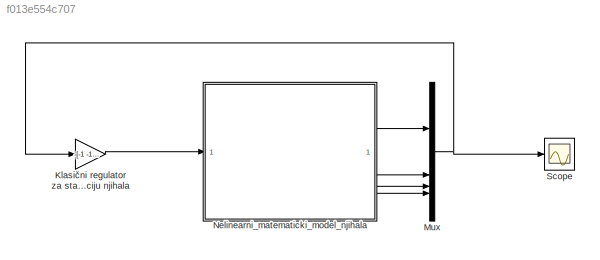
MODEL slx_f013e554c707
KIND model
CONFIG AbsTol = auto
CONFIG EnableMultiTasking = off
CONFIG FixedStep = 0.001
CONFIG MaxStep = 0.01
CONFIG MinStep = auto
CONFIG RelTol = 1e-3
CONFIG SampleTimeConstraint = Unconstrained
CONFIG SolverName = FixedStepAuto
CONFIG StartTime = 0.0
CONFIG StopTime = 15
BLOCK [Gain] Klasični regulator za stabilizaciju njihala
  Gain = -[-1 -1 16 2]
  Multiplication = Matrix(K*u)
BLOCK [Mux] Mux
  DisplayOption = bar
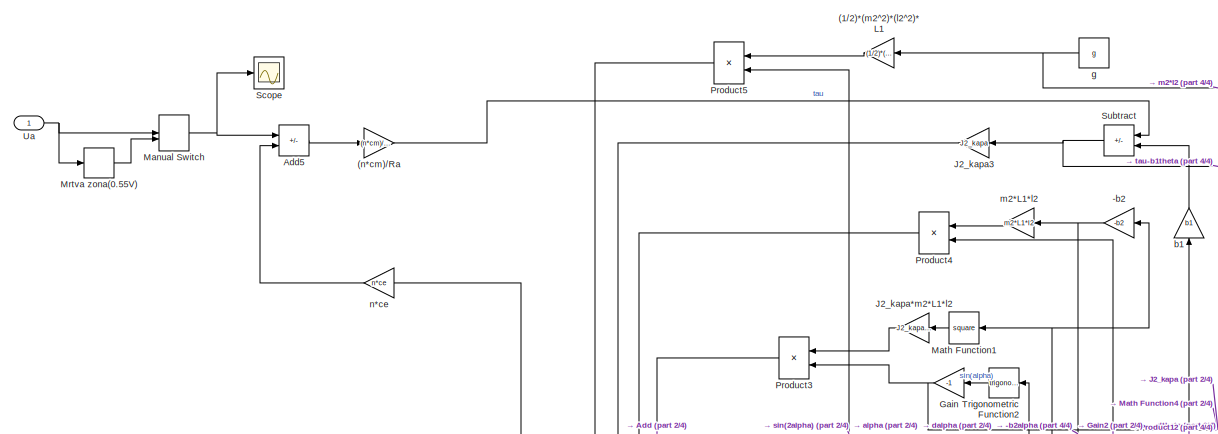
[diagram: Nelinearni_matematicki_model_njihala - part 1/4, top left region]
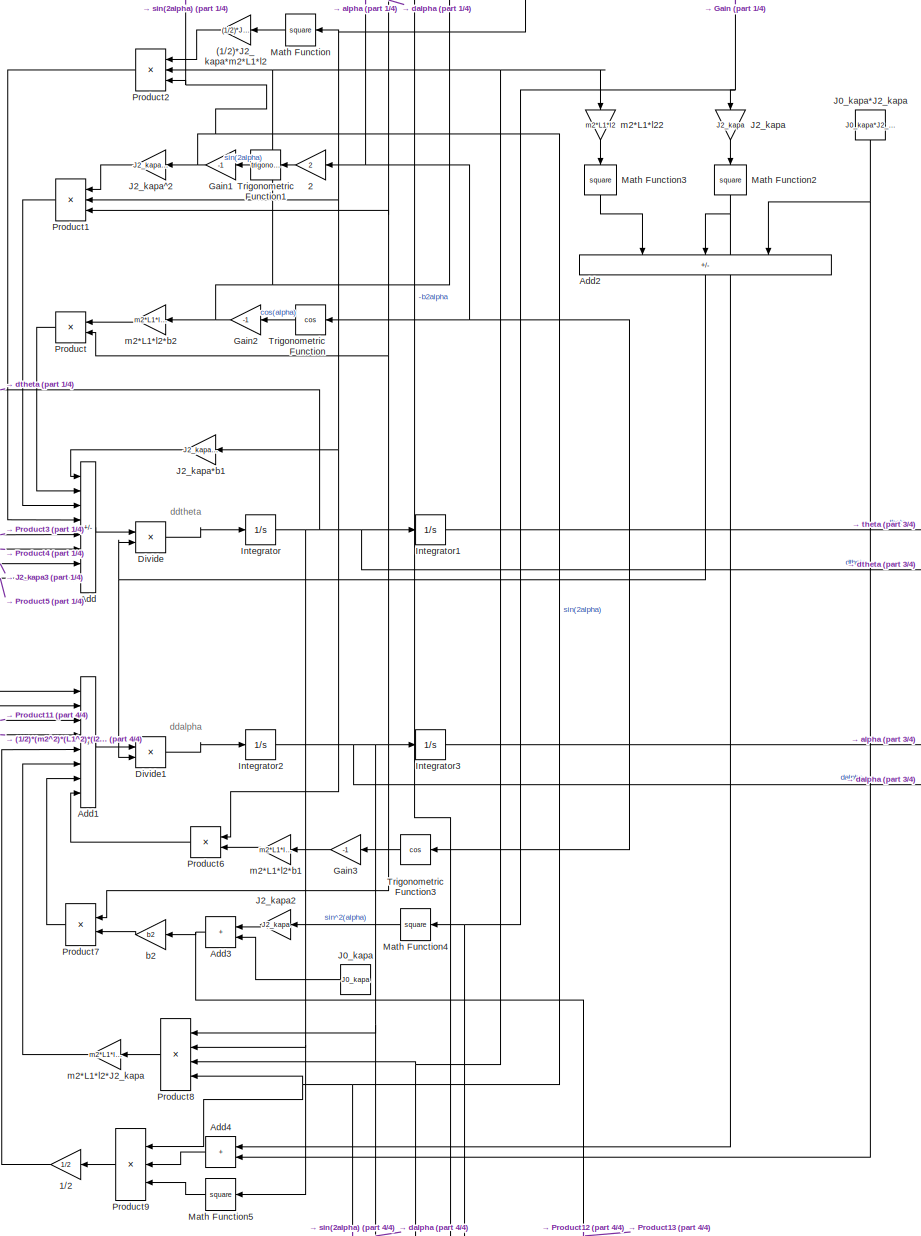
[diagram: Nelinearni_matematicki_model_njihala - part 2/4, central region]
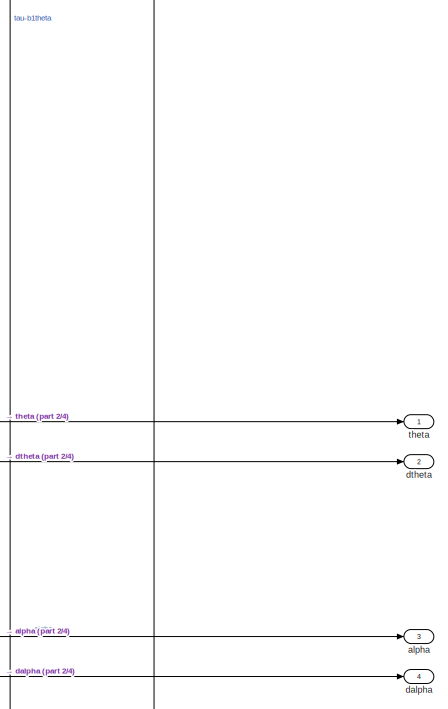
[diagram: Nelinearni_matematicki_model_njihala - part 3/4, middle right region]
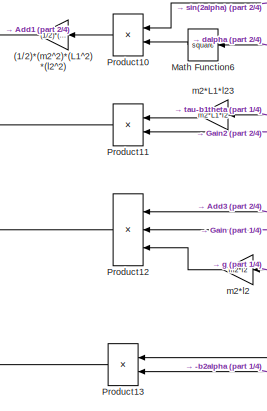
[diagram: Nelinearni_matematicki_model_njihala - part 4/4, bottom center region]
BLOCK [SubSystem] Nelinearni_matematicki_model_njihala
BLOCK [Gain] Nelinearni_matematicki_model_njihala/(1//2)*(m2^2)*(L1^2)*(l2^2)
  Gain = (1/2)*(m2^2)*(L1^2)*(l2^2)
  NameLocation = top
BLOCK [Gain] Nelinearni_matematicki_model_njihala/(1//2)*(m2^2)*(l2^2)*L1
  Gain = (1/2)*(m2^2)*(l2^2)*L1
  NameLocation = top
BLOCK [Gain] Nelinearni_matematicki_model_njihala/(1//2)*J2_kapa*m2*L1*l2
  Gain = (1/2)*J2_kapa*m2*L1*l2
  NameLocation = top
BLOCK [Gain] Nelinearni_matematicki_model_njihala/(n*cm)//Ra
  Gain = (n*cm)/Ra
BLOCK [Gain] Nelinearni_matematicki_model_njihala/-b2
  Gain = -b2
  NameLocation = top
BLOCK [Gain] Nelinearni_matematicki_model_njihala/1//2
  Gain = 1/2
  NameLocation = top
BLOCK [Gain] Nelinearni_matematicki_model_njihala/2
  Gain = 2
  NameLocation = top
BLOCK [Sum] Nelinearni_matematicki_model_njihala/Add
  IconShape = rectangular
  Inputs = -+--+-+-
BLOCK [Sum] Nelinearni_matematicki_model_njihala/Add1
  IconShape = rectangular
  Inputs = -+---+-+
BLOCK [Sum] Nelinearni_matematicki_model_njihala/Add2
  IconShape = rectangular
  Inputs = -++
  NameLocation = left
BLOCK [Sum] Nelinearni_matematicki_model_njihala/Add3
  IconShape = rectangular
  NameLocation = top
BLOCK [Sum] Nelinearni_matematicki_model_njihala/Add4
  IconShape = rectangular
  NameLocation = top
BLOCK [Sum] Nelinearni_matematicki_model_njihala/Add5
  IconShape = rectangular
  Inputs = +-
BLOCK [Product] Nelinearni_matematicki_model_njihala/Divide
  Inputs = */
BLOCK [Product] Nelinearni_matematicki_model_njihala/Divide1
  Inputs = */
BLOCK [Gain] Nelinearni_matematicki_model_njihala/Gain
  Gain = -1
  NameLocation = top
BLOCK [Gain] Nelinearni_matematicki_model_njihala/Gain1
  Gain = -1
  NameLocation = top
BLOCK [Gain] Nelinearni_matematicki_model_njihala/Gain2
  Gain = -1
  NameLocation = top
BLOCK [Gain] Nelinearni_matematicki_model_njihala/Gain3
  Gain = -1
  NameLocation = top
BLOCK [Integrator] Nelinearni_matematicki_model_njihala/Integrator
BLOCK [Integrator] Nelinearni_matematicki_model_njihala/Integrator1
BLOCK [Integrator] Nelinearni_matematicki_model_njihala/Integrator2
BLOCK [Integrator] Nelinearni_matematicki_model_njihala/Integrator3
  InitialCondition = pi/16
BLOCK [Constant] Nelinearni_matematicki_model_njihala/J0_kapa
  NameLocation = top
  Value = J0_kapa
BLOCK [Constant] Nelinearni_matematicki_model_njihala/J0_kapa*J2_kapa
  NameLocation = left
  Value = J0_kapa*J2_kapa
BLOCK [Gain] Nelinearni_matematicki_model_njihala/J2_kapa
  Gain = J2_kapa
  NameLocation = left
BLOCK [Gain] Nelinearni_matematicki_model_njihala/J2_kapa*b1
  Gain = J2_kapa*b1
  NameLocation = top
BLOCK [Gain] Nelinearni_matematicki_model_njihala/J2_kapa*m2*L1*l2
  Gain = J2_kapa*m2*L1*l2
  NameLocation = top
BLOCK [Gain] Nelinearni_matematicki_model_njihala/J2_kapa2
  Gain = J2_kapa
  NameLocation = top
BLOCK [Gain] Nelinearni_matematicki_model_njihala/J2_kapa3
  Gain = J2_kapa
  NameLocation = top
BLOCK [Gain] Nelinearni_matematicki_model_njihala/J2_kapa^2
  Gain = J2_kapa^2
  NameLocation = top
BLOCK [ManualSwitch] Nelinearni_matematicki_model_njihala/Manual Switch
BLOCK [Math] Nelinearni_matematicki_model_njihala/Math Function
  NameLocation = top
  Operator = square
BLOCK [Math] Nelinearni_matematicki_model_njihala/Math Function1
  NameLocation = top
  Operator = square
BLOCK [Math] Nelinearni_matematicki_model_njihala/Math Function2
  NameLocation = left
  Operator = square
BLOCK [Math] Nelinearni_matematicki_model_njihala/Math Function3
  NameLocation = left
  Operator = square
BLOCK [Math] Nelinearni_matematicki_model_njihala/Math Function4
  NameLocation = top
  Operator = square
BLOCK [Math] Nelinearni_matematicki_model_njihala/Math Function5
  NameLocation = top
  Operator = square
BLOCK [Math] Nelinearni_matematicki_model_njihala/Math Function6
  NameLocation = top
  Operator = square
BLOCK [DeadZone] Nelinearni_matematicki_model_njihala/Mrtva zona(0.55V)
  LowerValue = -0.55
  UpperValue = 0.55
BLOCK [Product] Nelinearni_matematicki_model_njihala/Product
  NameLocation = top
BLOCK [Product] Nelinearni_matematicki_model_njihala/Product1
  Inputs = 3
  NameLocation = top
BLOCK [Product] Nelinearni_matematicki_model_njihala/Product10
  NameLocation = top
BLOCK [Product] Nelinearni_matematicki_model_njihala/Product11
  NameLocation = top
BLOCK [Product] Nelinearni_matematicki_model_njihala/Product12
  Inputs = 3
  NameLocation = top
BLOCK [Product] Nelinearni_matematicki_model_njihala/Product13
  NameLocation = top
BLOCK [Product] Nelinearni_matematicki_model_njihala/Product2
  Inputs = 3
  NameLocation = top
BLOCK [Product] Nelinearni_matematicki_model_njihala/Product3
  NameLocation = top
BLOCK [Product] Nelinearni_matematicki_model_njihala/Product4
  NameLocation = top
BLOCK [Product] Nelinearni_matematicki_model_njihala/Product5
  NameLocation = top
BLOCK [Product] Nelinearni_matematicki_model_njihala/Product6
  NameLocation = top
BLOCK [Product] Nelinearni_matematicki_model_njihala/Product7
  NameLocation = top
BLOCK [Product] Nelinearni_matematicki_model_njihala/Product8
  Inputs = 4
  NameLocation = top
BLOCK [Product] Nelinearni_matematicki_model_njihala/Product9
  Inputs = 3
  NameLocation = top
BLOCK [Scope] Nelinearni_matematicki_model_njihala/Scope
  Floating = off
  NumInputPorts = 1
  ScopeSpecificationString = Simulink.scopes.TimeScopeBlockCfg('CurrentConfiguration', extmgr.ConfigurationSet(extmgr.Configuration('Core','General UI',true),extmgr.Configuration('Core','Source UI',true),extmgr.Configuration('Sources','WiredSimulink',true,'DataLoggingVariableName','ScopeData6'),extmgr.Configuration('Visuals','Time Domain',true,'SerializedDisplays',{struct('MinYLimReal','-4.13806','MaxYLimReal','1.14753','YLab...<+1372ch>
BLOCK [Sum] Nelinearni_matematicki_model_njihala/Subtract
  IconShape = rectangular
  Inputs = +-
  NameLocation = top
BLOCK [Trigonometry] Nelinearni_matematicki_model_njihala/Trigonometric Function
  NameLocation = top
  Operator = cos
BLOCK [Trigonometry] Nelinearni_matematicki_model_njihala/Trigonometric Function1
  NameLocation = top
BLOCK [Trigonometry] Nelinearni_matematicki_model_njihala/Trigonometric Function2
  NameLocation = top
BLOCK [Trigonometry] Nelinearni_matematicki_model_njihala/Trigonometric Function3
  NameLocation = top
  Operator = cos
BLOCK [Inport] Nelinearni_matematicki_model_njihala/Ua
BLOCK [Outport] Nelinearni_matematicki_model_njihala/alpha
  Port = 3
BLOCK [Gain] Nelinearni_matematicki_model_njihala/b1
  Gain = b1
  NameLocation = right
BLOCK [Gain] Nelinearni_matematicki_model_njihala/b2
  Gain = b2
  NameLocation = top
BLOCK [Outport] Nelinearni_matematicki_model_njihala/dalpha
  Port = 4
BLOCK [Outport] Nelinearni_matematicki_model_njihala/dtheta
  Port = 2
BLOCK [Constant] Nelinearni_matematicki_model_njihala/g
  NameLocation = top
  Value = g
BLOCK [Gain] Nelinearni_matematicki_model_njihala/m2*L1*l2
  Gain = m2*L1*l2
  NameLocation = top
BLOCK [Gain] Nelinearni_matematicki_model_njihala/m2*L1*l2*J2_kapa
  Gain = m2*L1*l2*J2_kapa
  NameLocation = top
BLOCK [Gain] Nelinearni_matematicki_model_njihala/m2*L1*l2*b1
  Gain = m2*L1*l2*b1
  NameLocation = top
BLOCK [Gain] Nelinearni_matematicki_model_njihala/m2*L1*l2*b2
  Gain = m2*L1*l2*b2
  NameLocation = top
BLOCK [Gain] Nelinearni_matematicki_model_njihala/m2*L1*l22
  Gain = m2*L1*l2
  NameLocation = left
BLOCK [Gain] Nelinearni_matematicki_model_njihala/m2*L1*l23
  Gain = m2*L1*l2
  NameLocation = top
BLOCK [Gain] Nelinearni_matematicki_model_njihala/m2*l2
  Gain = m2*l2
  NameLocation = top
BLOCK [Gain] Nelinearni_matematicki_model_njihala/n*ce
  Gain = n*ce
  NameLocation = top
BLOCK [Outport] Nelinearni_matematicki_model_njihala/theta
BLOCK [Scope] Scope
  Floating = off
  NumInputPorts = 1
  ScopeSpecificationString = Simulink.scopes.TimeScopeBlockCfg('CurrentConfiguration', extmgr.ConfigurationSet(extmgr.Configuration('Core','General UI',true),extmgr.Configuration('Core','Source UI',true),extmgr.Configuration('Sources','WiredSimulink',true,'DataLoggingVariableName','ScopeData1'),extmgr.Configuration('Visuals','Time Domain',true,'SerializedDisplays',{struct('MinYLimReal','-7.16391','MaxYLimReal','2.01639','YLab...<+1565ch>
ANNOTATION Nelinearni_matematicki_model_njihala: ddalpha
ANNOTATION Nelinearni_matematicki_model_njihala: ddtheta
LINE Klasični regulator za stabilizaciju njihala:1 -> Nelinearni_matematicki_model_njihala:1
NET Mux:1 -> Klasični regulator za stabilizaciju njihala:1, Scope:1
LINE Nelinearni_matematicki_model_njihala/(1//2)*(m2^2)*(L1^2)*(l2^2):1 -> Nelinearni_matematicki_model_njihala/Add1:4
LINE Nelinearni_matematicki_model_njihala/(1//2)*(m2^2)*(l2^2)*L1:1 -> Nelinearni_matematicki_model_njihala/Product5:1
LINE Nelinearni_matematicki_model_njihala/(1//2)*J2_kapa*m2*L1*l2:1 -> Nelinearni_matematicki_model_njihala/Product2:1
LINE Nelinearni_matematicki_model_njihala/(n*cm)//Ra:1 -> Nelinearni_matematicki_model_njihala/Subtract:1
NET Nelinearni_matematicki_model_njihala/-b2:1 -> Nelinearni_matematicki_model_njihala/Product13:2, Nelinearni_matematicki_model_njihala/m2*L1*l2:1
LINE Nelinearni_matematicki_model_njihala/1//2:1 -> Nelinearni_matematicki_model_njihala/Add1:5
LINE Nelinearni_matematicki_model_njihala/2:1 -> Nelinearni_matematicki_model_njihala/Trigonometric Function1:1
LINE Nelinearni_matematicki_model_njihala/Add1:1 -> Nelinearni_matematicki_model_njihala/Divide1:1
NET Nelinearni_matematicki_model_njihala/Add2:1 -> Nelinearni_matematicki_model_njihala/Divide1:2, Nelinearni_matematicki_model_njihala/Divide:2
NET Nelinearni_matematicki_model_njihala/Add3:1 -> Nelinearni_matematicki_model_njihala/Product12:1, Nelinearni_matematicki_model_njihala/Product13:1, Nelinearni_matematicki_model_njihala/b2:1
LINE Nelinearni_matematicki_model_njihala/Add4:1 -> Nelinearni_matematicki_model_njihala/Product9:2
LINE Nelinearni_matematicki_model_njihala/Add5:1 -> Nelinearni_matematicki_model_njihala/(n*cm)//Ra:1
LINE Nelinearni_matematicki_model_njihala/Add:1 -> Nelinearni_matematicki_model_njihala/Divide:1
LINE Nelinearni_matematicki_model_njihala/Divide1:1 -> Nelinearni_matematicki_model_njihala/Integrator2:1
LINE Nelinearni_matematicki_model_njihala/Divide:1 -> Nelinearni_matematicki_model_njihala/Integrator:1
NET Nelinearni_matematicki_model_njihala/Gain1:1 -> Nelinearni_matematicki_model_njihala/J2_kapa^2:1, Nelinearni_matematicki_model_njihala/Product10:1, Nelinearni_matematicki_model_njihala/Product2:3, Nelinearni_matematicki_model_njihala/Product5:2, Nelinearni_matematicki_model_njihala/Product8:4, Nelinearni_matematicki_model_njihala/Product9:1
NET Nelinearni_matematicki_model_njihala/Gain2:1 -> Nelinearni_matematicki_model_njihala/Product11:2, Nelinearni_matematicki_model_njihala/Product2:2, Nelinearni_matematicki_model_njihala/Product4:2, Nelinearni_matematicki_model_njihala/Product8:3, Nelinearni_matematicki_model_njihala/m2*L1*l2*b2:1, Nelinearni_matematicki_model_njihala/m2*L1*l22:1
LINE Nelinearni_matematicki_model_njihala/Gain3:1 -> Nelinearni_matematicki_model_njihala/m2*L1*l2*b1:1
NET Nelinearni_matematicki_model_njihala/Gain:1 -> Nelinearni_matematicki_model_njihala/J2_kapa:1, Nelinearni_matematicki_model_njihala/Math Function4:1, Nelinearni_matematicki_model_njihala/Product12:2, Nelinearni_matematicki_model_njihala/Product3:2
LINE Nelinearni_matematicki_model_njihala/Integrator1:1 -> Nelinearni_matematicki_model_njihala/theta:1
NET Nelinearni_matematicki_model_njihala/Integrator2:1 -> Nelinearni_matematicki_model_njihala/-b2:1, Nelinearni_matematicki_model_njihala/Integrator3:1, Nelinearni_matematicki_model_njihala/Math Function1:1, Nelinearni_matematicki_model_njihala/Math Function6:1, Nelinearni_matematicki_model_njihala/Product1:3, Nelinearni_matematicki_model_njihala/Product7:1, Nelinearni_matematicki_model_njihala/Product8:1, Nelinearni_matematicki_model_njihala/Product:2, Nelinearni_matematicki_model_njihala/dalpha:1
NET Nelinearni_matematicki_model_njihala/Integrator3:1 -> Nelinearni_matematicki_model_njihala/2:1, Nelinearni_matematicki_model_njihala/Trigonometric Function2:1, Nelinearni_matematicki_model_njihala/Trigonometric Function3:1, Nelinearni_matematicki_model_njihala/Trigonometric Function:1, Nelinearni_matematicki_model_njihala/alpha:1
NET Nelinearni_matematicki_model_njihala/Integrator:1 -> Nelinearni_matematicki_model_njihala/Integrator1:1, Nelinearni_matematicki_model_njihala/J2_kapa*b1:1, Nelinearni_matematicki_model_njihala/Math Function5:1, Nelinearni_matematicki_model_njihala/Math Function:1, Nelinearni_matematicki_model_njihala/Product1:2, Nelinearni_matematicki_model_njihala/Product6:1, Nelinearni_matematicki_model_njihala/Product8:2, Nelinearni_matematicki_model_njihala/b1:1, Nelinearni_matematicki_model_njihala/dtheta:1, Nelinearni_matematicki_model_njihala/n*ce:1
NET Nelinearni_matematicki_model_njihala/J0_kapa*J2_kapa:1 -> Nelinearni_matematicki_model_njihala/Add2:3, Nelinearni_matematicki_model_njihala/Add4:2
LINE Nelinearni_matematicki_model_njihala/J0_kapa:1 -> Nelinearni_matematicki_model_njihala/Add3:2
LINE Nelinearni_matematicki_model_njihala/J2_kapa*b1:1 -> Nelinearni_matematicki_model_njihala/Add:1
LINE Nelinearni_matematicki_model_njihala/J2_kapa*m2*L1*l2:1 -> Nelinearni_matematicki_model_njihala/Product3:1
LINE Nelinearni_matematicki_model_njihala/J2_kapa2:1 -> Nelinearni_matematicki_model_njihala/Add3:1
LINE Nelinearni_matematicki_model_njihala/J2_kapa3:1 -> Nelinearni_matematicki_model_njihala/Add:7
LINE Nelinearni_matematicki_model_njihala/J2_kapa:1 -> Nelinearni_matematicki_model_njihala/Math Function2:1
LINE Nelinearni_matematicki_model_njihala/J2_kapa^2:1 -> Nelinearni_matematicki_model_njihala/Product1:1
NET Nelinearni_matematicki_model_njihala/Manual Switch:1 -> Nelinearni_matematicki_model_njihala/Add5:1, Nelinearni_matematicki_model_njihala/Scope:1
LINE Nelinearni_matematicki_model_njihala/Math Function1:1 -> Nelinearni_matematicki_model_njihala/J2_kapa*m2*L1*l2:1
NET Nelinearni_matematicki_model_njihala/Math Function2:1 -> Nelinearni_matematicki_model_njihala/Add2:2, Nelinearni_matematicki_model_njihala/Add4:1
LINE Nelinearni_matematicki_model_njihala/Math Function3:1 -> Nelinearni_matematicki_model_njihala/Add2:1
LINE Nelinearni_matematicki_model_njihala/Math Function4:1 -> Nelinearni_matematicki_model_njihala/J2_kapa2:1
LINE Nelinearni_matematicki_model_njihala/Math Function5:1 -> Nelinearni_matematicki_model_njihala/Product9:3
LINE Nelinearni_matematicki_model_njihala/Math Function6:1 -> Nelinearni_matematicki_model_njihala/Product10:2
LINE Nelinearni_matematicki_model_njihala/Math Function:1 -> Nelinearni_matematicki_model_njihala/(1//2)*J2_kapa*m2*L1*l2:1
LINE Nelinearni_matematicki_model_njihala/Mrtva zona(0.55V):1 -> Nelinearni_matematicki_model_njihala/Manual Switch:2
LINE Nelinearni_matematicki_model_njihala/Product10:1 -> Nelinearni_matematicki_model_njihala/(1//2)*(m2^2)*(L1^2)*(l2^2):1
LINE Nelinearni_matematicki_model_njihala/Product11:1 -> Nelinearni_matematicki_model_njihala/Add1:3
LINE Nelinearni_matematicki_model_njihala/Product12:1 -> Nelinearni_matematicki_model_njihala/Add1:1
LINE Nelinearni_matematicki_model_njihala/Product13:1 -> Nelinearni_matematicki_model_njihala/Add1:2
LINE Nelinearni_matematicki_model_njihala/Product1:1 -> Nelinearni_matematicki_model_njihala/Add:3
LINE Nelinearni_matematicki_model_njihala/Product2:1 -> Nelinearni_matematicki_model_njihala/Add:4
LINE Nelinearni_matematicki_model_njihala/Product3:1 -> Nelinearni_matematicki_model_njihala/Add:5
LINE Nelinearni_matematicki_model_njihala/Product4:1 -> Nelinearni_matematicki_model_njihala/Add:6
LINE Nelinearni_matematicki_model_njihala/Product5:1 -> Nelinearni_matematicki_model_njihala/Add:8
LINE Nelinearni_matematicki_model_njihala/Product6:1 -> Nelinearni_matematicki_model_njihala/Add1:8
LINE Nelinearni_matematicki_model_njihala/Product7:1 -> Nelinearni_matematicki_model_njihala/Add1:7
LINE Nelinearni_matematicki_model_njihala/Product8:1 -> Nelinearni_matematicki_model_njihala/m2*L1*l2*J2_kapa:1
LINE Nelinearni_matematicki_model_njihala/Product9:1 -> Nelinearni_matematicki_model_njihala/1//2:1
LINE Nelinearni_matematicki_model_njihala/Product:1 -> Nelinearni_matematicki_model_njihala/Add:2
NET Nelinearni_matematicki_model_njihala/Subtract:1 -> Nelinearni_matematicki_model_njihala/J2_kapa3:1, Nelinearni_matematicki_model_njihala/m2*L1*l23:1
LINE Nelinearni_matematicki_model_njihala/Trigonometric Function1:1 -> Nelinearni_matematicki_model_njihala/Gain1:1
LINE Nelinearni_matematicki_model_njihala/Trigonometric Function2:1 -> Nelinearni_matematicki_model_njihala/Gain:1
LINE Nelinearni_matematicki_model_njihala/Trigonometric Function3:1 -> Nelinearni_matematicki_model_njihala/Gain3:1
LINE Nelinearni_matematicki_model_njihala/Trigonometric Function:1 -> Nelinearni_matematicki_model_njihala/Gain2:1
NET Nelinearni_matematicki_model_njihala/Ua:1 -> Nelinearni_matematicki_model_njihala/Manual Switch:1, Nelinearni_matematicki_model_njihala/Mrtva zona(0.55V):1
LINE Nelinearni_matematicki_model_njihala/b1:1 -> Nelinearni_matematicki_model_njihala/Subtract:2
LINE Nelinearni_matematicki_model_njihala/b2:1 -> Nelinearni_matematicki_model_njihala/Product7:2
NET Nelinearni_matematicki_model_njihala/g:1 -> Nelinearni_matematicki_model_njihala/(1//2)*(m2^2)*(l2^2)*L1:1, Nelinearni_matematicki_model_njihala/m2*l2:1
LINE Nelinearni_matematicki_model_njihala/m2*L1*l2*J2_kapa:1 -> Nelinearni_matematicki_model_njihala/Add1:6
LINE Nelinearni_matematicki_model_njihala/m2*L1*l2*b1:1 -> Nelinearni_matematicki_model_njihala/Product6:2
LINE Nelinearni_matematicki_model_njihala/m2*L1*l2*b2:1 -> Nelinearni_matematicki_model_njihala/Product:1
LINE Nelinearni_matematicki_model_njihala/m2*L1*l22:1 -> Nelinearni_matematicki_model_njihala/Math Function3:1
LINE Nelinearni_matematicki_model_njihala/m2*L1*l23:1 -> Nelinearni_matematicki_model_njihala/Product11:1
LINE Nelinearni_matematicki_model_njihala/m2*L1*l2:1 -> Nelinearni_matematicki_model_njihala/Product4:1
LINE Nelinearni_matematicki_model_njihala/m2*l2:1 -> Nelinearni_matematicki_model_njihala/Product12:3
LINE Nelinearni_matematicki_model_njihala/n*ce:1 -> Nelinearni_matematicki_model_njihala/Add5:2
LINE Nelinearni_matematicki_model_njihala:1 -> Mux:1
LINE Nelinearni_matematicki_model_njihala:2 -> Mux:2
LINE Nelinearni_matematicki_model_njihala:3 -> Mux:3
LINE Nelinearni_matematicki_model_njihala:4 -> Mux:4
note: NET lines group one-source signal fan-out (src -> all destinations, sorted); 1:1 wires keep LINE
